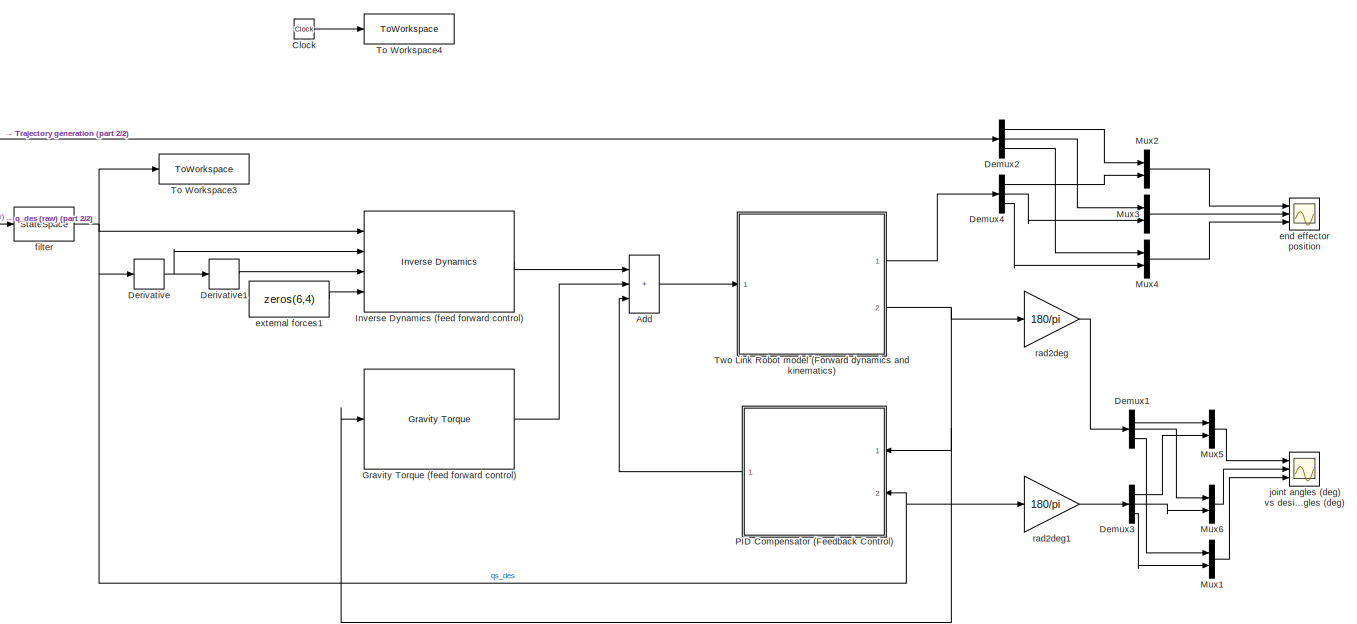
[diagram: root canvas - part 1/2, center side, full height]
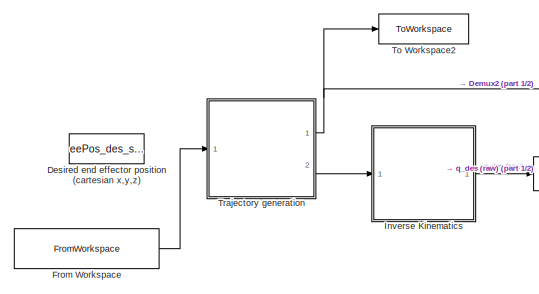
[diagram: root canvas - part 2/2, middle left region]
MODEL slx_b2c399e8757c
KIND model
CONFIG AbsTol = auto
CONFIG EnableMultiTasking = off
CONFIG FixedStep = t_sample
CONFIG MaxStep = auto
CONFIG MinStep = auto
CONFIG RelTol = 1e-3
CONFIG SampleTimeConstraint = Unconstrained
CONFIG SolverName = ode2
CONFIG StartTime = 0.0
CONFIG StopTime = tsim
BLOCK [Sum] Add
  IconShape = rectangular
  Inputs = +++
  Ports = [3, 1]
BLOCK [Clock] Clock
BLOCK [Demux] Demux1
  Outputs = 3
  Ports = [1, 3]
BLOCK [Demux] Demux2
  Outputs = 3
  Ports = [1, 3]
BLOCK [Demux] Demux3
  Outputs = 3
  Ports = [1, 3]
BLOCK [Demux] Demux4
  Outputs = 3
  Ports = [1, 3]
BLOCK [Derivative] Derivative
BLOCK [Derivative] Derivative1
BLOCK [Constant] Desired end effector position (cartesian x,y,z)
  Commented = on
  Value = eePos_des_sim
BLOCK [FromWorkspace] From Workspace
  VariableName = [time_traj eePos_des_traj]
BLOCK [Reference] Gravity Torque (feed forward control)  REF=robotmaniplib/Gravity Torque
  Ports = [1, 1]
  SourceBlock = robotmaniplib/Gravity Torque
  SourceProductBaseCode = RO
  SourceType = Gravity Torque
BLOCK [Reference] Inverse Dynamics (feed forward control)  REF=robotmaniplib/Inverse Dynamics
  Ports = [4, 1]
  SourceBlock = robotmaniplib/Inverse Dynamics
  SourceProductBaseCode = RO
  SourceType = Inverse Dynamics
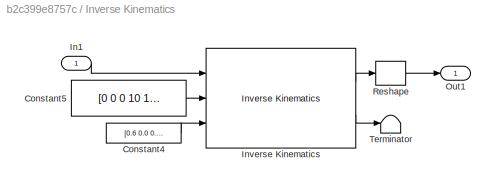
BLOCK [SubSystem] Inverse Kinematics
  Ports = [1, 1]
  RequestExecContextInheritance = off
BLOCK [Constant] Inverse Kinematics/Constant4
  Value = [0.6 0.0 0.3]
BLOCK [Constant] Inverse Kinematics/Constant5
  Value = [0 0 0 10 10 10]
BLOCK [Inport] Inverse Kinematics/In1
BLOCK [Reference] Inverse Kinematics/Inverse Kinematics  REF=robotmaniplib/Inverse Kinematics
  Ports = [3, 2]
  SourceBlock = robotmaniplib/Inverse Kinematics
  SourceProductBaseCode = RO
  SourceType = Inverse Kinematics
BLOCK [Outport] Inverse Kinematics/Out1
BLOCK [Reshape] Inverse Kinematics/Reshape
  Ports = [1, 1]
BLOCK [Terminator] Inverse Kinematics/Terminator
BLOCK [Mux] Mux1
  DisplayOption = bar
  Inputs = 2
  Ports = [2, 1]
BLOCK [Mux] Mux2
  DisplayOption = bar
  Inputs = 2
  Ports = [2, 1]
BLOCK [Mux] Mux3
  DisplayOption = bar
  Inputs = 2
  Ports = [2, 1]
BLOCK [Mux] Mux4
  DisplayOption = bar
  Inputs = 2
  Ports = [2, 1]
BLOCK [Mux] Mux5
  DisplayOption = bar
  Inputs = 2
  Ports = [2, 1]
BLOCK [Mux] Mux6
  DisplayOption = bar
  Inputs = 2
  Ports = [2, 1]
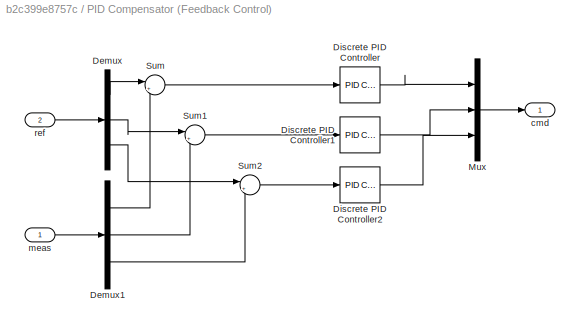
BLOCK [SubSystem] PID Compensator (Feedback Control)
  Ports = [2, 1]
  RequestExecContextInheritance = off
BLOCK [Demux] PID Compensator (Feedback Control)/Demux
  Outputs = 3
  Ports = [1, 3]
BLOCK [Demux] PID Compensator (Feedback Control)/Demux1
  Outputs = 3
  Ports = [1, 3]
BLOCK [Reference] PID Compensator (Feedback Control)/Discrete PID Controller  REF=slpidlib/PID Controller
  Ports = [1, 1]
  SourceBlock = slpidlib/PID Controller
  SourceProductBaseCode = SL
  SourceType = PID 1dof
BLOCK [Reference] PID Compensator (Feedback Control)/Discrete PID Controller1  REF=slpidlib/PID Controller
  Ports = [1, 1]
  SourceBlock = slpidlib/PID Controller
  SourceProductBaseCode = SL
  SourceType = PID 1dof
BLOCK [Reference] PID Compensator (Feedback Control)/Discrete PID Controller2  REF=slpidlib/PID Controller
  Ports = [1, 1]
  SourceBlock = slpidlib/PID Controller
  SourceProductBaseCode = SL
  SourceType = PID 1dof
BLOCK [Mux] PID Compensator (Feedback Control)/Mux
  DisplayOption = bar
  Inputs = 3
  Ports = [3, 1]
BLOCK [Sum] PID Compensator (Feedback Control)/Sum
  Inputs = |+-
  Ports = [2, 1]
BLOCK [Sum] PID Compensator (Feedback Control)/Sum1
  Inputs = |+-
  Ports = [2, 1]
BLOCK [Sum] PID Compensator (Feedback Control)/Sum2
  Inputs = |+-
  Ports = [2, 1]
BLOCK [Outport] PID Compensator (Feedback Control)/cmd
  VectorParamsAs1DForOutWhenUnconnected = off
BLOCK [Inport] PID Compensator (Feedback Control)/meas
BLOCK [Inport] PID Compensator (Feedback Control)/ref
  Port = 2
BLOCK [ToWorkspace] To Workspace2
  FixptAsFi = on
  MaxDataPoints = inf
  Ports = [1]
  SampleTime = -1
  VariableName = eePos_des
BLOCK [ToWorkspace] To Workspace3
  FixptAsFi = on
  MaxDataPoints = inf
  Ports = [1]
  SampleTime = -1
  VariableName = qs_des
BLOCK [ToWorkspace] To Workspace4
  FixptAsFi = on
  MaxDataPoints = inf
  Ports = [1]
  SampleTime = -1
  VariableName = t_sim
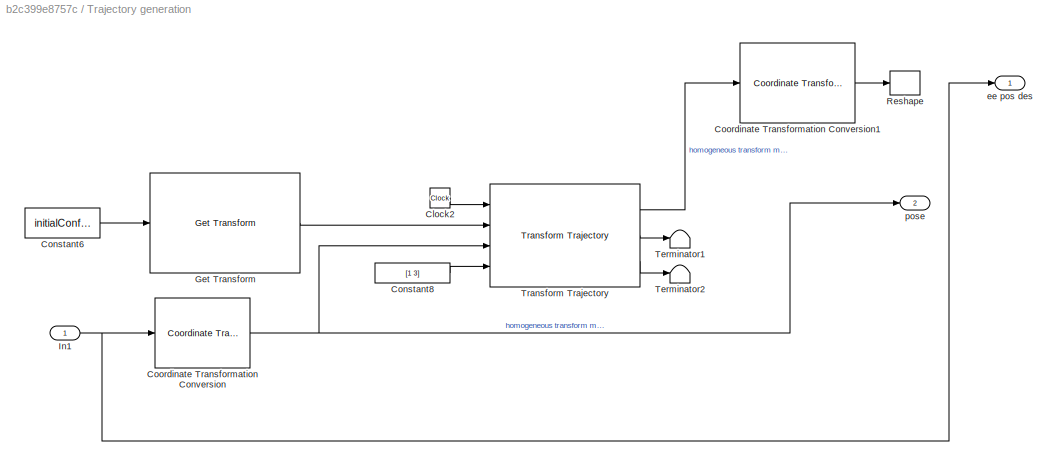
BLOCK [SubSystem] Trajectory generation
  Ports = [1, 2]
  RequestExecContextInheritance = off
BLOCK [Clock] Trajectory generation/Clock2
  Commented = on
BLOCK [Constant] Trajectory generation/Constant6
  Commented = on
  Value = initialConfig
BLOCK [Constant] Trajectory generation/Constant8
  Commented = on
  Value = [1 3]
BLOCK [Reference] Trajectory generation/Coordinate Transformation Conversion  REF=robotcorelib/Coordinate Transformation Conversion
  Ports = [1, 1]
  SourceBlock = robotcorelib/Coordinate Transformation Conversion
  SourceProductBaseCode = RO,NV,RR,UV
  SourceType = robotics.slcore.internal.block.CoordinateTransformationConversion
BLOCK [Reference] Trajectory generation/Coordinate Transformation Conversion1  REF=robotcorelib/Coordinate Transformation Conversion
  Commented = on
  Ports = [1, 1]
  SourceBlock = robotcorelib/Coordinate Transformation Conversion
  SourceProductBaseCode = RO,NV,RR,UV
  SourceType = robotics.slcore.internal.block.CoordinateTransformationConversion
BLOCK [Reference] Trajectory generation/Get Transform  REF=robotmaniplib/Get Transform
  Commented = on
  Ports = [1, 1]
  SourceBlock = robotmaniplib/Get Transform
  SourceProductBaseCode = RO
  SourceType = Get Transform
BLOCK [Inport] Trajectory generation/In1
BLOCK [Reshape] Trajectory generation/Reshape
  Commented = on
  Ports = [1, 1]
BLOCK [Terminator] Trajectory generation/Terminator1
  Commented = on
BLOCK [Terminator] Trajectory generation/Terminator2
  Commented = on
BLOCK [Reference] Trajectory generation/Transform Trajectory  REF=robotcorelib/Transform Trajectory
  Commented = on
  Ports = [4, 3]
  SourceBlock = robotcorelib/Transform Trajectory
  SourceProductBaseCode = RO,NV,RR,UV
  SourceType = robotics.slcore.internal.block.TransformTrajSys
BLOCK [Outport] Trajectory generation/ee pos des
BLOCK [Outport] Trajectory generation/pose
  Port = 2
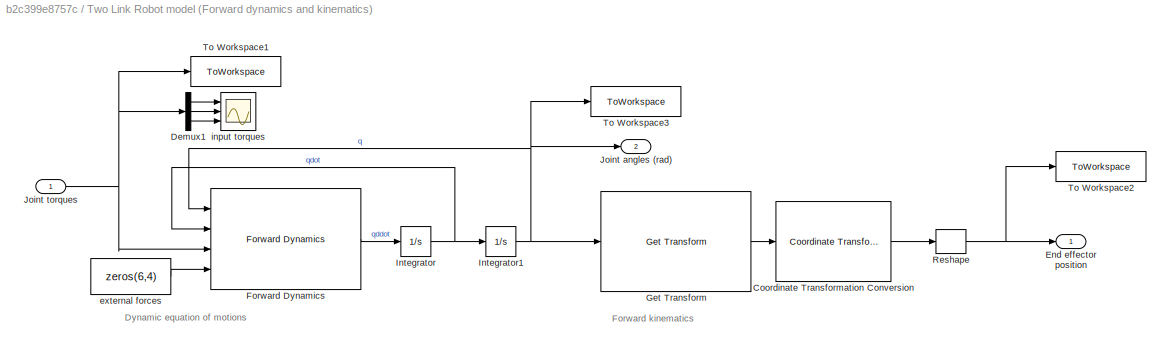
BLOCK [SubSystem] Two Link Robot model (Forward dynamics and kinematics)
  Ports = [1, 2]
  RequestExecContextInheritance = off
BLOCK [Reference] Two Link Robot model (Forward dynamics and kinematics)/Coordinate Transformation Conversion  REF=robotcorelib/Coordinate Transformation Conversion
  Ports = [1, 1]
  SourceBlock = robotcorelib/Coordinate Transformation Conversion
  SourceProductBaseCode = RO,NV,RR,UV
  SourceType = robotics.slcore.internal.block.CoordinateTransformationConversion
BLOCK [Demux] Two Link Robot model (Forward dynamics and kinematics)/Demux1
  Outputs = 3
  Ports = [1, 3]
BLOCK [Outport] Two Link Robot model (Forward dynamics and kinematics)/End effector position
BLOCK [Reference] Two Link Robot model (Forward dynamics and kinematics)/Forward Dynamics  REF=robotmaniplib/Forward Dynamics
  Ports = [4, 1]
  SourceBlock = robotmaniplib/Forward Dynamics
  SourceProductBaseCode = RO
  SourceType = Forward Dynamics
BLOCK [Reference] Two Link Robot model (Forward dynamics and kinematics)/Get Transform  REF=robotmaniplib/Get Transform
  Ports = [1, 1]
  SourceBlock = robotmaniplib/Get Transform
  SourceProductBaseCode = RO
  SourceType = Get Transform
BLOCK [Integrator] Two Link Robot model (Forward dynamics and kinematics)/Integrator
  Ports = [1, 1]
BLOCK [Integrator] Two Link Robot model (Forward dynamics and kinematics)/Integrator1
  Ports = [1, 1]
BLOCK [Outport] Two Link Robot model (Forward dynamics and kinematics)/Joint angles (rad)
  Port = 2
BLOCK [Inport] Two Link Robot model (Forward dynamics and kinematics)/Joint torques
BLOCK [Reshape] Two Link Robot model (Forward dynamics and kinematics)/Reshape
  Ports = [1, 1]
BLOCK [ToWorkspace] Two Link Robot model (Forward dynamics and kinematics)/To Workspace1
  FixptAsFi = on
  MaxDataPoints = inf
  Ports = [1]
  SampleTime = -1
  VariableName = input_sim
BLOCK [ToWorkspace] Two Link Robot model (Forward dynamics and kinematics)/To Workspace2
  FixptAsFi = on
  MaxDataPoints = inf
  Ports = [1]
  SampleTime = -1
  VariableName = eePos_sim
BLOCK [ToWorkspace] Two Link Robot model (Forward dynamics and kinematics)/To Workspace3
  FixptAsFi = on
  MaxDataPoints = inf
  Ports = [1]
  SampleTime = -1
  VariableName = qs
BLOCK [Constant] Two Link Robot model (Forward dynamics and kinematics)/external forces
  Value = zeros(6,4)
BLOCK [Scope] Two Link Robot model (Forward dynamics and kinematics)/input torques
  Floating = off
  NumInputPorts = 3
  Ports = [3]
  ScopeSpecificationString = Simulink.scopes.TimeScopeBlockCfg('CurrentConfiguration', extmgr.ConfigurationSet(extmgr.Configuration('Core','General UI',true),extmgr.Configuration('Core','Source UI',true),extmgr.Configuration('Sources','WiredSimulink',true,'DataLoggingVariableName','ScopeData2'),extmgr.Configuration('Visuals','Time Domain',true,'SerializedDisplays',{struct('MinYLimReal','-0.32182','MaxYLimReal','0.30916','YLab...<+2756ch>
BLOCK [Scope] end effector position
  Floating = off
  NumInputPorts = 3
  Ports = [3]
  ScopeSpecificationString = Simulink.scopes.TimeScopeBlockCfg('CurrentConfiguration', extmgr.ConfigurationSet(extmgr.Configuration('Core','General UI',true),extmgr.Configuration('Core','Source UI',true),extmgr.Configuration('Sources','WiredSimulink',true,'DataLoggingVariableName','ScopeData1'),extmgr.Configuration('Visuals','Time Domain',true,'SerializedDisplays',{struct('MinYLimReal','-0.1','MaxYLimReal','0.9','YLabelReal',...<+2791ch>
BLOCK [Constant] external forces1
  Value = zeros(6,4)
BLOCK [StateSpace] filter
  A = -1*eye(3)
  B = 1*eye(3)
  C = eye(3)
  D = zeros(3,3)
  InitialCondition = 0
  Ports = [1, 1]
BLOCK [Scope] joint angles (deg) vs desired joint angles (deg)
  Floating = off
  NameLocation = top
  NumInputPorts = 3
  Ports = [3]
  ScopeSpecificationString = Simulink.scopes.TimeScopeBlockCfg('CurrentConfiguration', extmgr.ConfigurationSet(extmgr.Configuration('Core','General UI',true),extmgr.Configuration('Core','Source UI',true),extmgr.Configuration('Sources','WiredSimulink',true,'DataLoggingVariableName','ScopeData1'),extmgr.Configuration('Visuals','Time Domain',true,'SerializedDisplays',{struct('MinYLimReal','-11.25','MaxYLimReal','101.25','YLabelR...<+2765ch>
BLOCK [Gain] rad2deg
  Gain = 180/pi
BLOCK [Gain] rad2deg1
  Gain = 180/pi
ANNOTATION Two Link Robot model (Forward dynamics and kinematics): Dynamic equation of motions
ANNOTATION Two Link Robot model (Forward dynamics and kinematics): Forward kinematics
LINE Add:1 -> Two Link Robot model (Forward dynamics and kinematics):1
LINE Clock:1 -> To Workspace4:1
LINE Demux1:1 -> Mux5:1
LINE Demux1:2 -> Mux6:1
LINE Demux1:3 -> Mux1:1
LINE Demux2:1 -> Mux2:1
LINE Demux2:2 -> Mux3:1
LINE Demux2:3 -> Mux4:1
LINE Demux3:1 -> Mux5:2
LINE Demux3:2 -> Mux6:2
LINE Demux3:3 -> Mux1:2
LINE Demux4:1 -> Mux2:2
LINE Demux4:2 -> Mux3:2
LINE Demux4:3 -> Mux4:2
LINE Derivative1:1 -> Inverse Dynamics (feed forward control):3
NET Derivative:1 -> Derivative1:1, Inverse Dynamics (feed forward control):2
LINE From Workspace:1 -> Trajectory generation:1
LINE Gravity Torque (feed forward control):1 -> Add:2
LINE Inverse Dynamics (feed forward control):1 -> Add:1
LINE Inverse Kinematics/Constant4:1 -> Inverse Kinematics/Inverse Kinematics:3
LINE Inverse Kinematics/Constant5:1 -> Inverse Kinematics/Inverse Kinematics:2
LINE Inverse Kinematics/In1:1 -> Inverse Kinematics/Inverse Kinematics:1
LINE Inverse Kinematics/Inverse Kinematics:1 -> Inverse Kinematics/Reshape:1
LINE Inverse Kinematics/Inverse Kinematics:2 -> Inverse Kinematics/Terminator:1
LINE Inverse Kinematics/Reshape:1 -> Inverse Kinematics/Out1:1
LINE Inverse Kinematics:1 -> filter:1
LINE Mux1:1 -> joint angles (deg) vs desired joint angles (deg):3
LINE Mux2:1 -> end effector position:1
LINE Mux3:1 -> end effector position:2
LINE Mux4:1 -> end effector position:3
LINE Mux5:1 -> joint angles (deg) vs desired joint angles (deg):1
LINE Mux6:1 -> joint angles (deg) vs desired joint angles (deg):2
LINE PID Compensator (Feedback Control)/Demux1:1 -> PID Compensator (Feedback Control)/Sum:2
LINE PID Compensator (Feedback Control)/Demux1:2 -> PID Compensator (Feedback Control)/Sum1:2
LINE PID Compensator (Feedback Control)/Demux1:3 -> PID Compensator (Feedback Control)/Sum2:2
LINE PID Compensator (Feedback Control)/Demux:1 -> PID Compensator (Feedback Control)/Sum:1
LINE PID Compensator (Feedback Control)/Demux:2 -> PID Compensator (Feedback Control)/Sum1:1
LINE PID Compensator (Feedback Control)/Demux:3 -> PID Compensator (Feedback Control)/Sum2:1
LINE PID Compensator (Feedback Control)/Discrete PID Controller1:1 -> PID Compensator (Feedback Control)/Mux:2
LINE PID Compensator (Feedback Control)/Discrete PID Controller2:1 -> PID Compensator (Feedback Control)/Mux:3
LINE PID Compensator (Feedback Control)/Discrete PID Controller:1 -> PID Compensator (Feedback Control)/Mux:1
LINE PID Compensator (Feedback Control)/Mux:1 -> PID Compensator (Feedback Control)/cmd:1
LINE PID Compensator (Feedback Control)/Sum1:1 -> PID Compensator (Feedback Control)/Discrete PID Controller1:1
LINE PID Compensator (Feedback Control)/Sum2:1 -> PID Compensator (Feedback Control)/Discrete PID Controller2:1
LINE PID Compensator (Feedback Control)/Sum:1 -> PID Compensator (Feedback Control)/Discrete PID Controller:1
LINE PID Compensator (Feedback Control)/meas:1 -> PID Compensator (Feedback Control)/Demux1:1
LINE PID Compensator (Feedback Control)/ref:1 -> PID Compensator (Feedback Control)/Demux:1
LINE PID Compensator (Feedback Control):1 -> Add:3
LINE Trajectory generation/Clock2:1 -> Trajectory generation/Transform Trajectory:1
LINE Trajectory generation/Constant6:1 -> Trajectory generation/Get Transform:1
LINE Trajectory generation/Constant8:1 -> Trajectory generation/Transform Trajectory:4
LINE Trajectory generation/Coordinate Transformation Conversion1:1 -> Trajectory generation/Reshape:1
NET Trajectory generation/Coordinate Transformation Conversion:1 -> Trajectory generation/Transform Trajectory:3, Trajectory generation/pose:1
LINE Trajectory generation/Get Transform:1 -> Trajectory generation/Transform Trajectory:2
NET Trajectory generation/In1:1 -> Trajectory generation/Coordinate Transformation Conversion:1, Trajectory generation/ee pos des:1
LINE Trajectory generation/Transform Trajectory:1 -> Trajectory generation/Coordinate Transformation Conversion1:1
LINE Trajectory generation/Transform Trajectory:2 -> Trajectory generation/Terminator1:1
LINE Trajectory generation/Transform Trajectory:3 -> Trajectory generation/Terminator2:1
NET Trajectory generation:1 -> Demux2:1, To Workspace2:1
LINE Trajectory generation:2 -> Inverse Kinematics:1
LINE Two Link Robot model (Forward dynamics and kinematics)/Coordinate Transformation Conversion:1 -> Two Link Robot model (Forward dynamics and kinematics)/Reshape:1
LINE Two Link Robot model (Forward dynamics and kinematics)/Demux1:1 -> Two Link Robot model (Forward dynamics and kinematics)/input torques:1
LINE Two Link Robot model (Forward dynamics and kinematics)/Demux1:2 -> Two Link Robot model (Forward dynamics and kinematics)/input torques:2
LINE Two Link Robot model (Forward dynamics and kinematics)/Demux1:3 -> Two Link Robot model (Forward dynamics and kinematics)/input torques:3
LINE Two Link Robot model (Forward dynamics and kinematics)/Forward Dynamics:1 -> Two Link Robot model (Forward dynamics and kinematics)/Integrator:1
LINE Two Link Robot model (Forward dynamics and kinematics)/Get Transform:1 -> Two Link Robot model (Forward dynamics and kinematics)/Coordinate Transformation Conversion:1
NET Two Link Robot model (Forward dynamics and kinematics)/Integrator1:1 -> Two Link Robot model (Forward dynamics and kinematics)/Forward Dynamics:1, Two Link Robot model (Forward dynamics and kinematics)/Get Transform:1, Two Link Robot model (Forward dynamics and kinematics)/Joint angles (rad):1, Two Link Robot model (Forward dynamics and kinematics)/To Workspace3:1
NET Two Link Robot model (Forward dynamics and kinematics)/Integrator:1 -> Two Link Robot model (Forward dynamics and kinematics)/Forward Dynamics:2, Two Link Robot model (Forward dynamics and kinematics)/Integrator1:1
NET Two Link Robot model (Forward dynamics and kinematics)/Joint torques:1 -> Two Link Robot model (Forward dynamics and kinematics)/Demux1:1, Two Link Robot model (Forward dynamics and kinematics)/Forward Dynamics:3, Two Link Robot model (Forward dynamics and kinematics)/To Workspace1:1
NET Two Link Robot model (Forward dynamics and kinematics)/Reshape:1 -> Two Link Robot model (Forward dynamics and kinematics)/End effector position:1, Two Link Robot model (Forward dynamics and kinematics)/To Workspace2:1
LINE Two Link Robot model (Forward dynamics and kinematics)/external forces:1 -> Two Link Robot model (Forward dynamics and kinematics)/Forward Dynamics:4
LINE Two Link Robot model (Forward dynamics and kinematics):1 -> Demux4:1
NET Two Link Robot model (Forward dynamics and kinematics):2 -> Gravity Torque (feed forward control):1, PID Compensator (Feedback Control):1, rad2deg:1
LINE external forces1:1 -> Inverse Dynamics (feed forward control):4
NET filter:1 -> Derivative:1, Inverse Dynamics (feed forward control):1, PID Compensator (Feedback Control):2, To Workspace3:1, rad2deg1:1
LINE rad2deg1:1 -> Demux3:1
LINE rad2deg:1 -> Demux1:1
note: NET lines group one-source signal fan-out (src -> all destinations, sorted); 1:1 wires keep LINE
